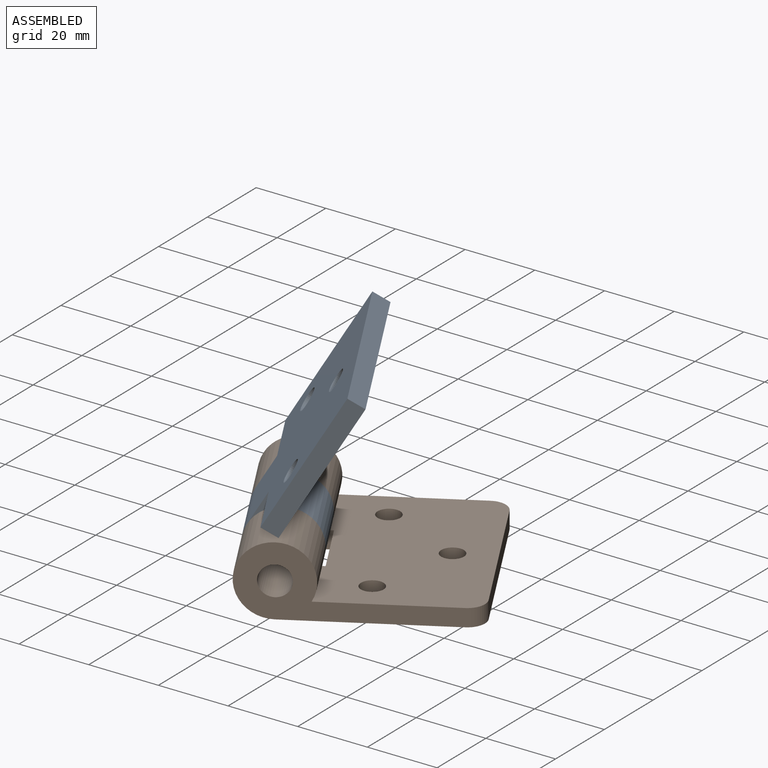
[diagram: assembled view]
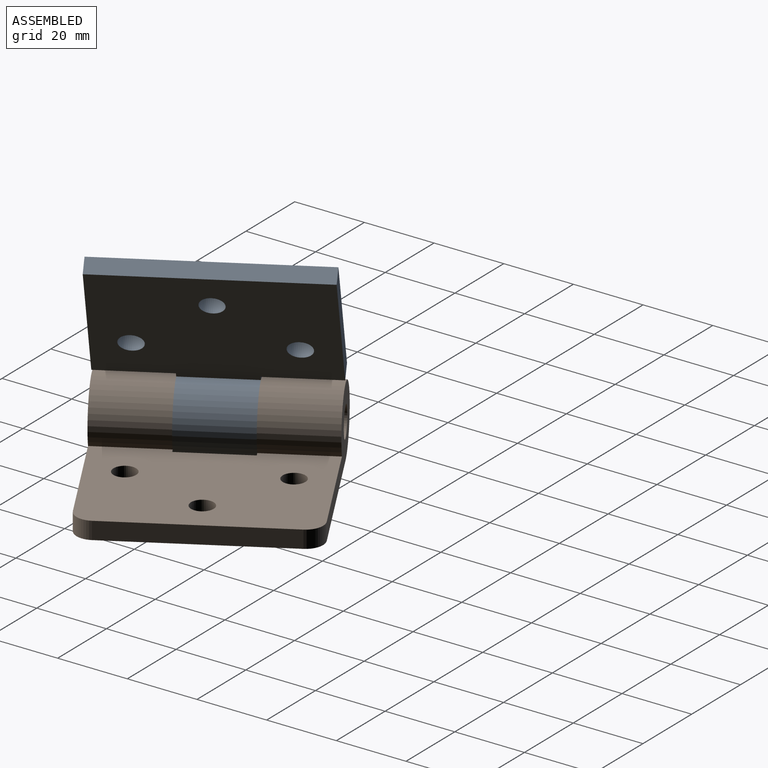
[diagram: assembled view, second angle]
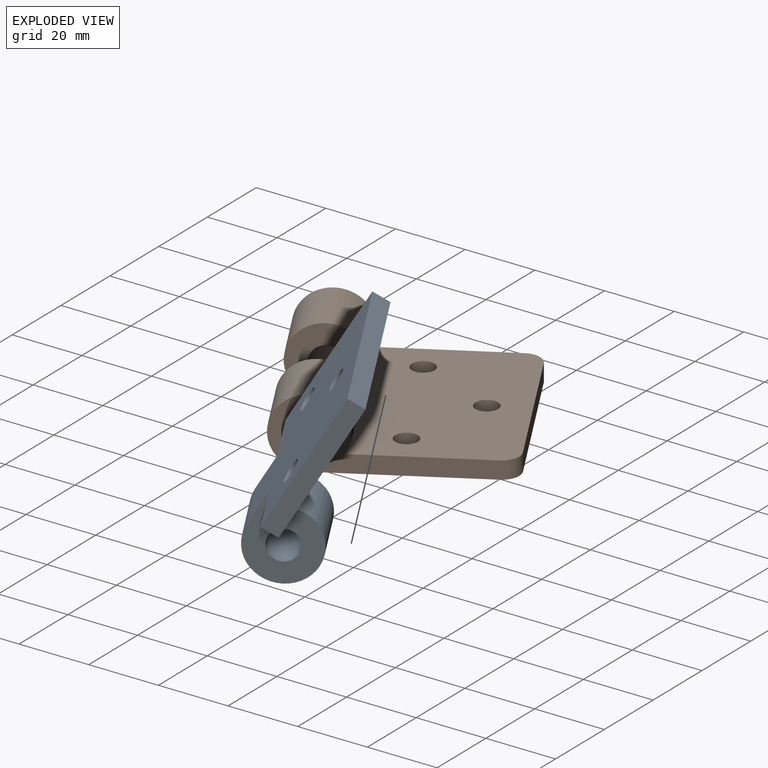
[diagram: exploded view]
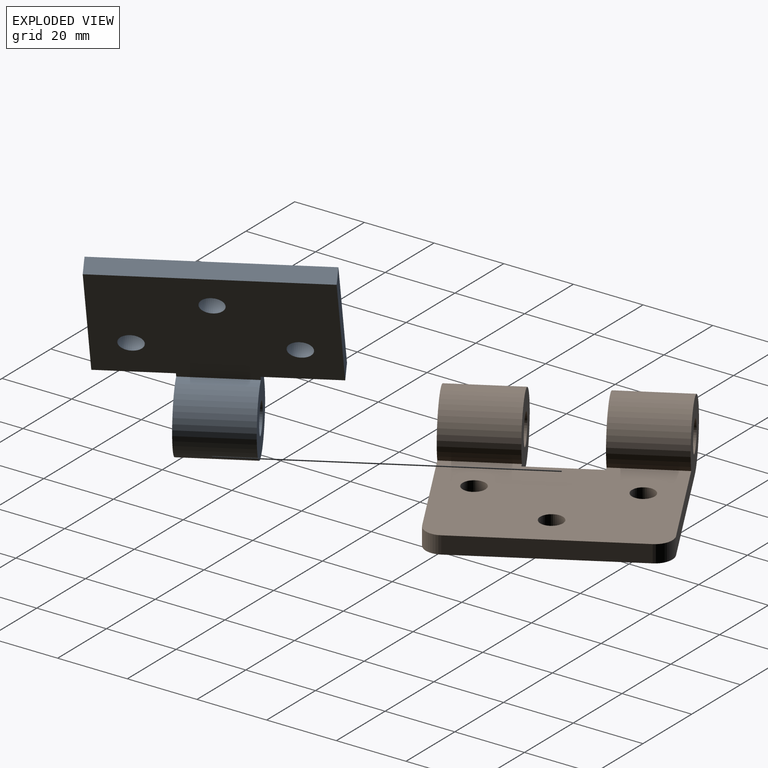
[diagram: exploded view, second angle]
ASSEMBLY  parts=2 mates=2
PART A: 14 faces, bbox 60x60x20 mm
  f0: plane 60x41.34mm, normal (0,0,1), area 2328mm2, adj f1,f3,f4,f5,f6,f7,f8,f9
  f1: cylinder r=10mm len=20mm, axis (0,1,0), area 1047.2mm2, adj f0,f2,f6,f8
  f2: plane 60x50mm, normal (0,0,-1), area 2501.3mm2, adj f1,f3,f4,f5,f6,f7,f8,f9
  f3: plane 40x5mm, normal (0,-1,0), area 200mm2, adj f0,f2,f5,f7
  f4: plane 40x5mm, normal (0,1,0), area 200mm2, adj f0,f2,f5,f9
  f5: plane 60x5mm, normal (1,0,0), area 300mm2, adj f0,f2,f3,f4
  f6: plane 20x20mm, normal (0,-1,0), area 276.7mm2, adj f0,f1,f2,f7,f10
  f7: plane 20x5mm, normal (-1,0,0), area 100mm2, adj f0,f2,f3,f6
  f8: plane 20x20mm, normal (0,1,0), area 276.7mm2, adj f0,f1,f2,f9,f10
  f9: plane 20x5mm, normal (-1,0,0), area 100mm2, adj f0,f2,f4,f8
  f10: cylinder r=4.25mm len=20mm, axis (0,1,0), area 534.1mm2, adj f6,f8
  f11: cylinder r=3.25mm len=6.5mm, axis (0,0,1), area 102.1mm2, adj f0,f2
  f12: cylinder r=3.21mm len=6.42mm, axis (0,0,1), area 100.9mm2, adj f0,f2
  f13: cylinder r=3.25mm len=6.5mm, axis (0,0,1), area 102.1mm2, adj f0,f2
PART B: 17 faces, bbox 60x60x20 mm
  f0: cylinder r=10mm len=20mm, axis (0,1,0), area 1047.2mm2, adj f2,f4,f7,f11
  f1: cylinder r=4.25mm len=20mm, axis (0,1,0), area 534.1mm2, adj f7,f11
  f2: plane 60x41.34mm, normal (0,0,1), area 2343.3mm2, adj f0,f3,f6,f7,f8,f9,f10,f11
  f3: cylinder r=10mm len=20mm, axis (0,1,0), area 1047.2mm2, adj f2,f4,f8,f10
  f4: plane 60x50mm, normal (0,0,-1), area 2689.7mm2, adj f0,f3,f6,f7,f8,f9,f10,f11
  f5: cylinder r=4.25mm len=20mm, axis (0,1,0), area 534.1mm2, adj f8,f10
  f6: plane 50x5mm, normal (1,0,0), area 250mm2, adj f2,f4,f15,f16
  f7: plane 55x20mm, normal (0,-1,0), area 451.7mm2, adj f0,f1,f2,f4,f16
  f8: plane 55x20mm, normal (0,1,0), area 451.7mm2, adj f2,f3,f4,f5,f15
  f9: plane 20x5mm, normal (-1,0,0), area 100mm2, adj f2,f4,f10,f11
  f10: plane 20x20mm, normal (0,-1,0), area 276.7mm2, adj f2,f3,f4,f5,f9
  f11: plane 20x20mm, normal (0,1,0), area 276.7mm2, adj f0,f1,f2,f4,f9
  f12: cylinder r=3.25mm len=6.5mm, axis (0,0,1), area 102.1mm2, adj f2,f4
  f13: cylinder r=3.25mm len=6.5mm, axis (0,0,1), area 102.1mm2, adj f2,f4
  f14: cylinder r=3.25mm len=6.5mm, axis (0,0,1), area 102.1mm2, adj f2,f4
  f15: cylinder r=5mm len=5mm, axis (0,0,1), area 39.3mm2, adj f2,f4,f6,f8
  f16: cylinder r=5mm len=5mm, axis (0,0,-1), area 39.3mm2, adj f2,f4,f6,f7
PLACE A rot(axis=(-0.85,-0.22,-0.48),165.6deg) t=(-10.93,28.54,-45.59)mm
PLACE B rot(axis=(0,0,1),29.4deg) t=(-10.93,28.54,-45.59)mm fixed
MATE cylindrical B.f1 <-> A.f10  axis (-0.49,0.87,0) through (-6.03,19.82,-45.59)mm
MATE planar A.f10 <-> B.f1  axis (0.49,-0.87,0) through (-6.03,19.82,-45.59)mm
